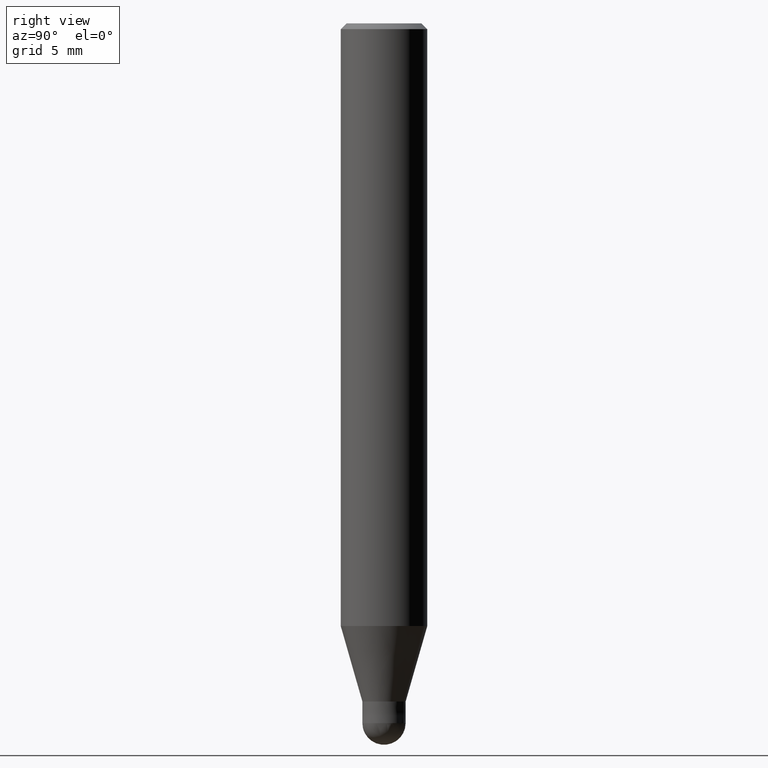
[diagram: clean part render]
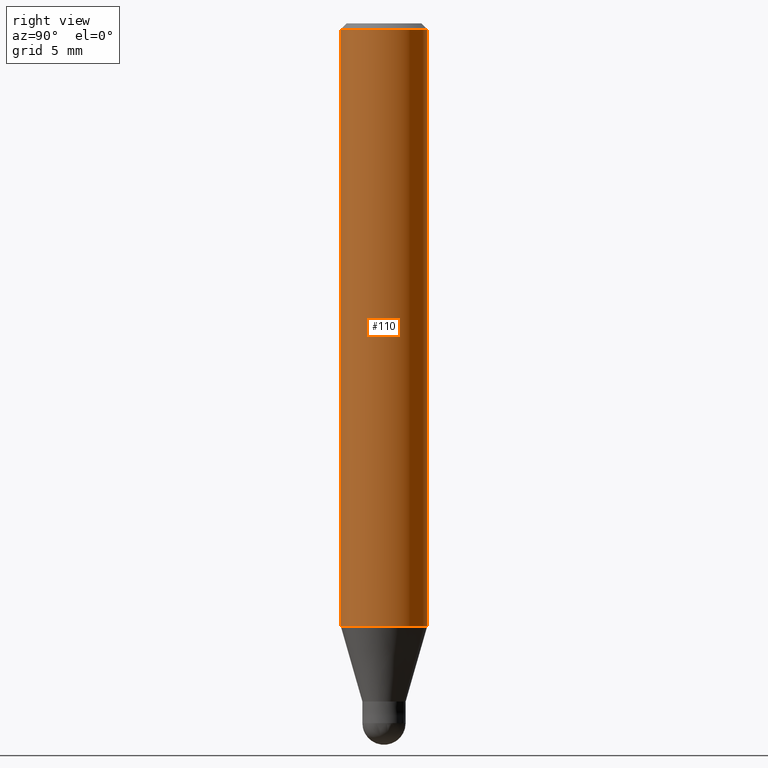
[diagram: same view with one face highlighted and labeled with its STEP entity id]
A machine part, right view. The second image highlights one B-rep face of the part: STEP entity #110.
In plain terms, the highlighted cylindrical surface (partial cylindrical patch) has radius 3 mm, axis along (-0, -0, 1).
Its self-contained STEP definition (entity closure, byte-faithful):
#90=EDGE_CURVE('',#132,#168,#215,.T.);
#102=VERTEX_POINT('',#227);
#104=EDGE_CURVE('',#102,#112,#229,.T.);
#110=ADVANCED_FACE('',(#236),#237,.T.);
#112=VERTEX_POINT('',#239);
#118=EDGE_CURVE('',#102,#168,#245,.T.);
#132=VERTEX_POINT('',#261);
#154=EDGE_CURVE('',#112,#132,#287,.T.);
#168=VERTEX_POINT('',#304);
#215=LINE('',#349,#350);
#227=CARTESIAN_POINT('',(0.0,3.0,-0.399999999999999));
#229=LINE('',#368,#369);
#236=FACE_OUTER_BOUND('',#378,.T.);
#237=CYLINDRICAL_SURFACE('',#379,3.0);
#239=CARTESIAN_POINT('',(0.0,3.0,-41.769));
#245=CIRCLE('',#387,3.0);
#261=CARTESIAN_POINT('',(3.67381906146713E-016,-3.0,-41.769));
#287=CIRCLE('',#438,3.0);
#304=CARTESIAN_POINT('',(3.67381906146713E-016,-3.0,-0.399999999999999));
#349=CARTESIAN_POINT('',(3.67381906146713E-016,-3.0,-21.0845));
#350=VECTOR('',#496,1.0);
#368=CARTESIAN_POINT('',(-3.67381906146713E-016,3.0,-21.0845));
#369=VECTOR('',#506,1.0);
#378=EDGE_LOOP('',(#515,#516,#517,#518));
#379=AXIS2_PLACEMENT_3D('',#519,#520,#521);
#387=AXIS2_PLACEMENT_3D('',#523,#524,#525);
#438=AXIS2_PLACEMENT_3D('',#576,#577,#578);
#496=DIRECTION('',(-0.0,-0.0,1.0));
#506=DIRECTION('',(0.0,0.0,-1.0));
#515=ORIENTED_EDGE('',*,*,#104,.F.);
#516=ORIENTED_EDGE('',*,*,#118,.T.);
#517=ORIENTED_EDGE('',*,*,#90,.F.);
#518=ORIENTED_EDGE('',*,*,#154,.F.);
#519=CARTESIAN_POINT('',(0.0,0.0,-21.0845));
#520=DIRECTION('',(-0.0,-0.0,1.0));
#521=DIRECTION('',(0.0,1.0,0.0));
#523=CARTESIAN_POINT('',(0.0,0.0,-0.399999999999999));
#524=DIRECTION('',(0.0,0.0,-1.0));
#525=DIRECTION('',(0.0,1.0,0.0));
#576=CARTESIAN_POINT('',(0.0,0.0,-41.769));
#577=DIRECTION('',(0.0,0.0,-1.0));
#578=DIRECTION('',(0.0,1.0,0.0));